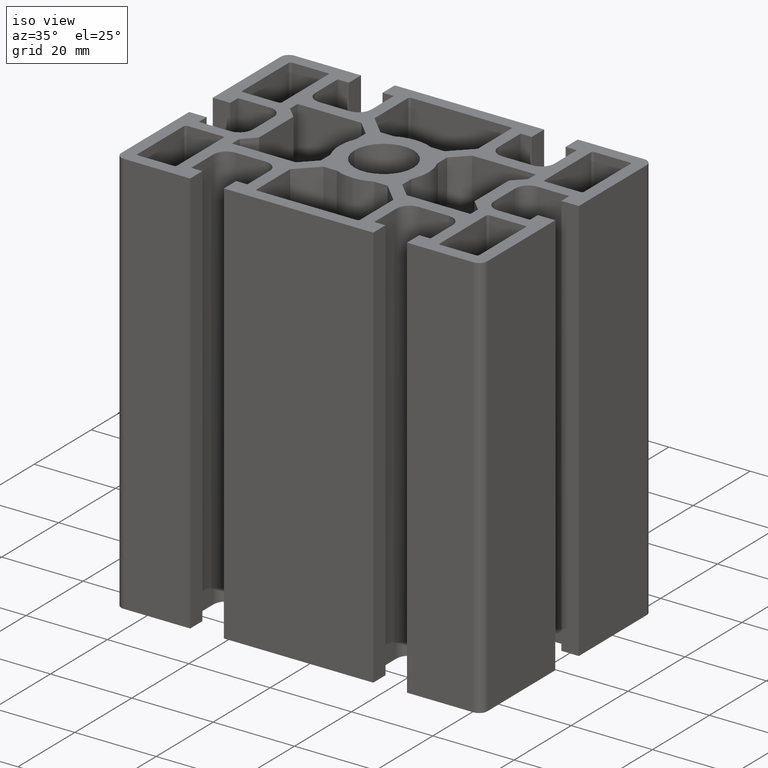
[diagram: clean part render]
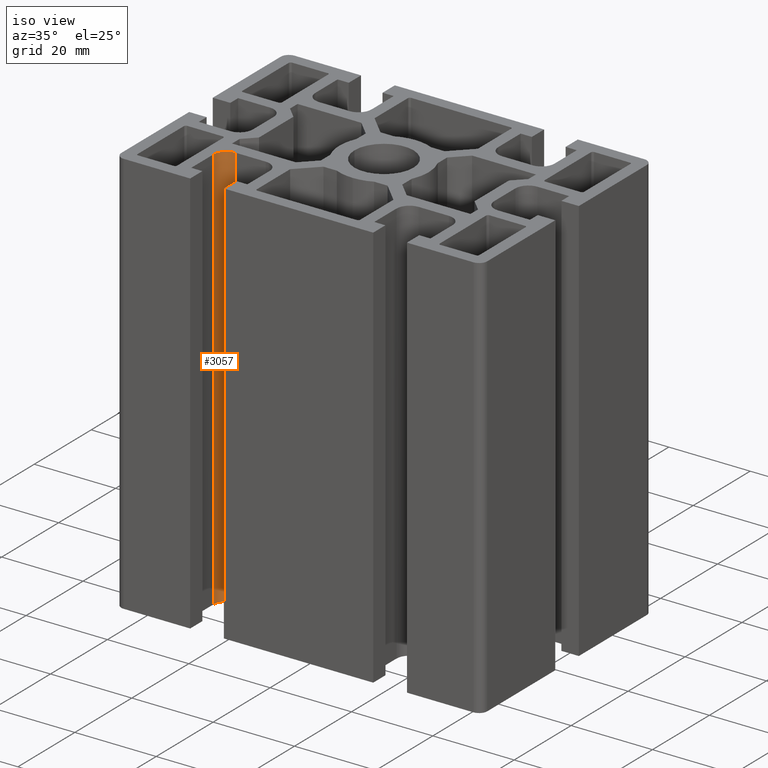
[diagram: same view with one face highlighted and labeled with its STEP entity id]
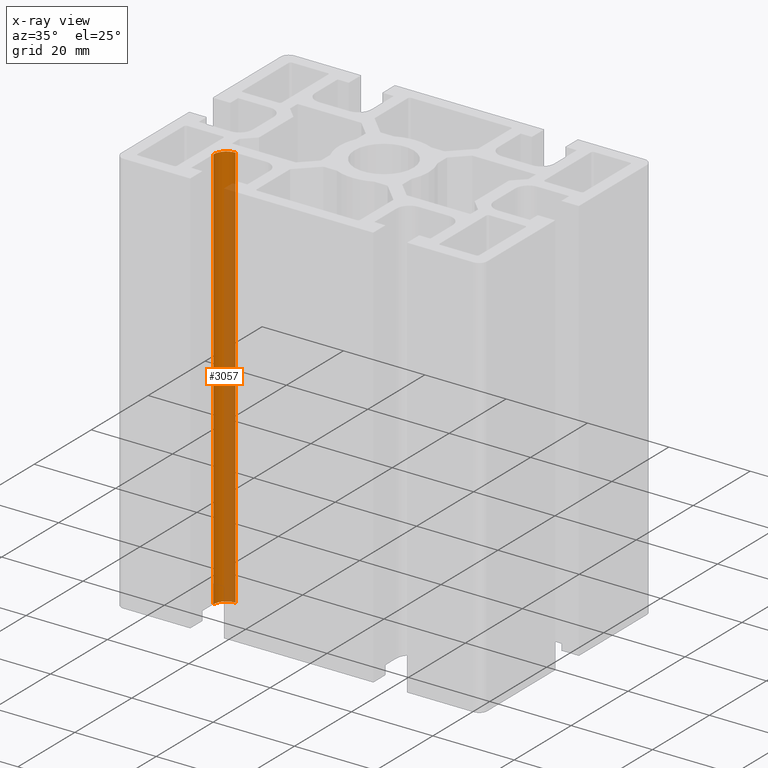
[diagram: x-ray of the same camera — body ghosted, the highlighted face saturated]
A machine part, iso view. The second image highlights one B-rep face of the part: STEP entity #3057.
The next image is the same camera in x-ray: the body ghosted, the highlighted face saturated — about 48% of this face is hidden behind the body in this view.
In plain terms, the highlighted cylindrical surface (edge-blend (fillet) strip) has radius 3.2 mm, axis along (0, 0, 1).
Its self-contained STEP definition (entity closure, byte-faithful):
#249=FACE_OUTER_BOUND('',#400,.T.);
#400=EDGE_LOOP('',(#2448,#2449,#2450,#2451));
#717=LINE('',#4845,#1074);
#718=LINE('',#4851,#1075);
#1074=VECTOR('',#3965,100.);
#1075=VECTOR('',#3972,100.);
#1245=CIRCLE('',#3283,3.2);
#1246=CIRCLE('',#3284,3.2);
#1483=VERTEX_POINT('',#4841);
#1484=VERTEX_POINT('',#4843);
#1485=VERTEX_POINT('',#4847);
#1486=VERTEX_POINT('',#4849);
#1891=EDGE_CURVE('',#1483,#1484,#717,.T.);
#1892=EDGE_CURVE('',#1485,#1483,#1245,.T.);
#1893=EDGE_CURVE('',#1486,#1484,#1246,.T.);
#1894=EDGE_CURVE('',#1485,#1486,#718,.T.);
#2448=ORIENTED_EDGE('',*,*,#1892,.T.);
#2449=ORIENTED_EDGE('',*,*,#1891,.T.);
#2450=ORIENTED_EDGE('',*,*,#1893,.F.);
#2451=ORIENTED_EDGE('',*,*,#1894,.F.);
#2938=CYLINDRICAL_SURFACE('',#3282,3.2);
#3057=ADVANCED_FACE('',(#249),#2938,.F.);
#3282=AXIS2_PLACEMENT_3D('',#4846,#3966,#3967);
#3283=AXIS2_PLACEMENT_3D('',#4848,#3968,#3969);
#3284=AXIS2_PLACEMENT_3D('',#4850,#3970,#3971);
#3965=DIRECTION('',(0.,0.,1.));
#3966=DIRECTION('center_axis',(0.,0.,1.));
#3967=DIRECTION('ref_axis',(-7.49400541622637E-14,-1.,0.));
#3968=DIRECTION('center_axis',(0.,0.,-1.));
#3969=DIRECTION('ref_axis',(-7.49400541622637E-14,-1.,0.));
#3970=DIRECTION('center_axis',(0.,0.,-1.));
#3971=DIRECTION('ref_axis',(-7.49400541622637E-14,-1.,0.));
#3972=DIRECTION('',(0.,0.,1.));
#4841=CARTESIAN_POINT('',(-26.1999991009864,-14.6999999999965,0.));
#4843=CARTESIAN_POINT('',(-26.1999991009864,-14.6999999999965,100.));
#4845=CARTESIAN_POINT('',(-26.1999991009864,-14.6999999999965,0.));
#4846=CARTESIAN_POINT('Origin',(-26.1999991009866,-17.8999999999937,0.));
#4847=CARTESIAN_POINT('',(-29.3999991009866,-17.9000000002636,0.));
#4848=CARTESIAN_POINT('Origin',(-26.1999991009866,-17.8999999999937,0.));
#4849=CARTESIAN_POINT('',(-29.3999991009866,-17.9000000002636,100.));
#4850=CARTESIAN_POINT('Origin',(-26.1999991009866,-17.8999999999937,100.));
#4851=CARTESIAN_POINT('',(-29.3999991009866,-17.9000000002636,0.));